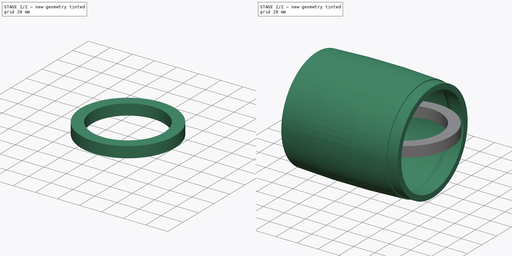
[diagram: build sequence overview — one tinted view per stage of 2, left to right]
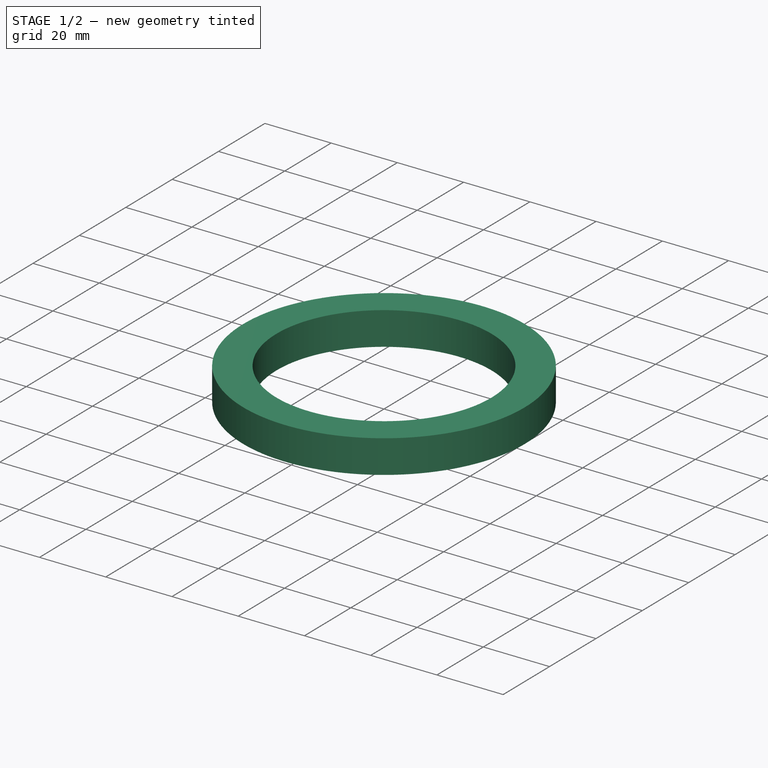
[diagram: stage 1 of 2 — iso view after this stage's code; geometry added in this stage tinted green]
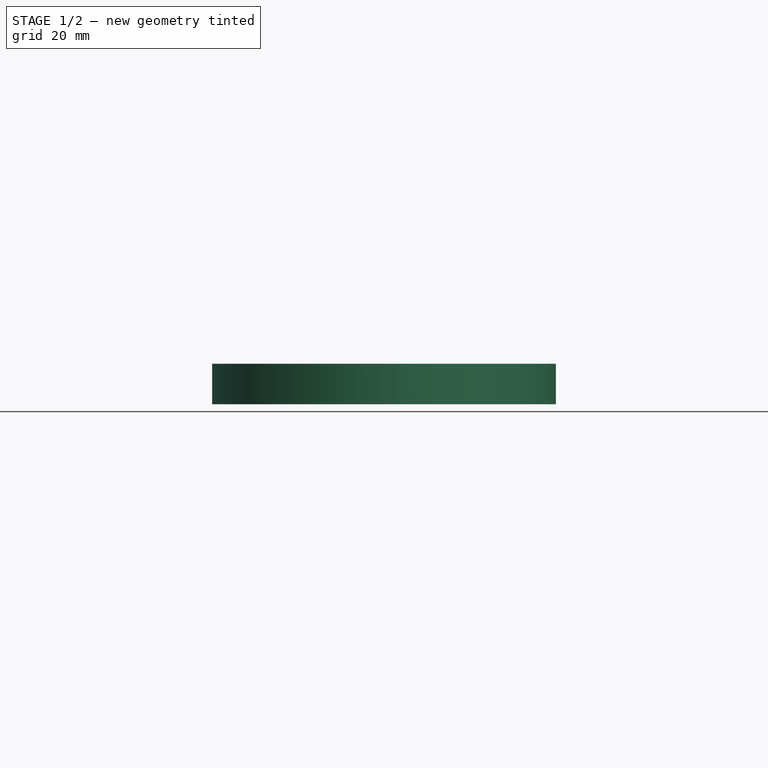
[diagram: stage 1 of 2 — front view after this stage's code; geometry added in this stage tinted green]
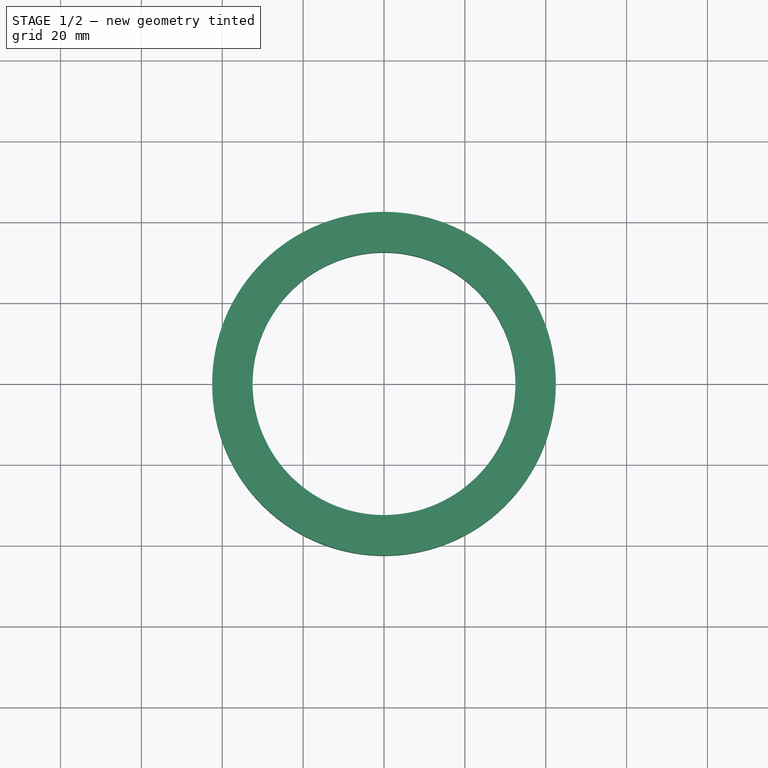
[diagram: stage 1 of 2 — top view after this stage's code; geometry added in this stage tinted green]
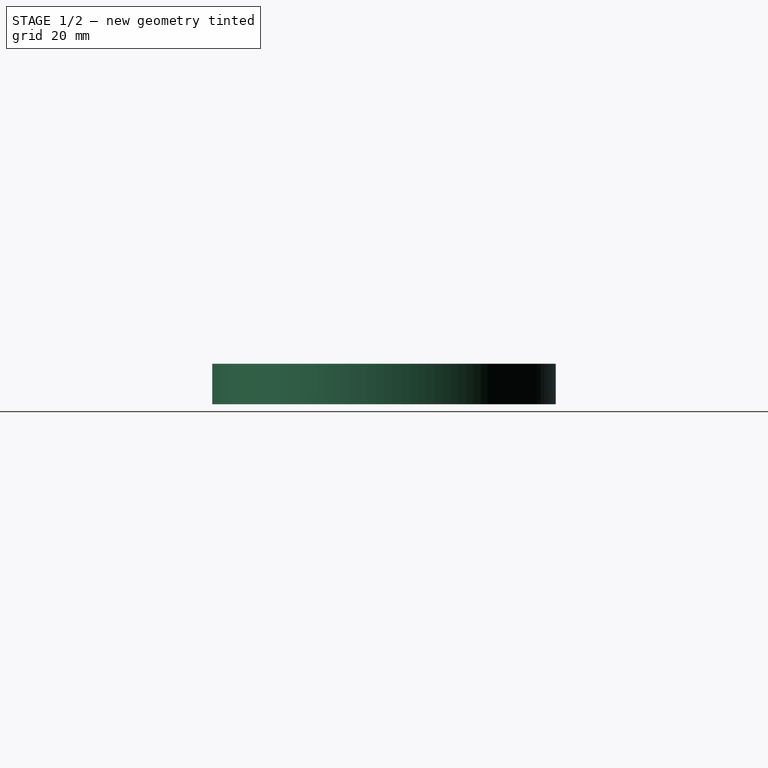
[diagram: stage 1 of 2 — right view after this stage's code; geometry added in this stage tinted green]
FCSTD DOCUMENT  (FreeCAD 0.22R37898 (Git))
Label: hub 6384
License: All rights reserved
LicenseURL: http://en.wikipedia.org/wiki/All_rights_reserved
objects: Part::Feature×3, Sketcher::SketchObject×2, PartDesign::Body×2, PartDesign::Revolution×1, App::Part×1, PartDesign::Pad×1
note: 11 computed .brp shape members not serialized (recipe doc carries the construction recipe); baked Part::Feature solids carry a one-line shape summary decoded from their .brp

FEATURE [PartDesign::Body] Body002  label="Pulley"
  AllowCompound = false
  Group = -> [Sketch007,Revolution004]
  Origin = -> Origin002
  Placement = pos=(27.5,0,0) rot=(0,0,1;0rad)
  Tip = -> Revolution004
FEATURE [Part::Feature] Part__Feature  label="Body"
  shape: bbox 68.19 x 68.19 x 80 mm, 50 faces (baked)
FEATURE [Part::Feature] Part__Feature001  label="Axis"
  shape: bbox 10.82 x 10.82 x 111 mm, 8 faces (baked)
FEATURE [App::Part] _384_DC_motor
  Group = -> [Part__Feature,Part__Feature001]
  Origin = -> Origin
  Placement = pos=(-35,0,-7.8e-15) rot=(0,1,0;4.71239rad)
FEATURE [Part::Feature] Part__Feature002  label="Coupler flange"
  Placement = pos=(-54.5,0,-1.21e-14) rot=(0,1,0;4.71239rad)
  shape: bbox 13 x 31 x 31 mm, 10 faces (baked)
FEATURE [Sketcher::SketchObject] Sketch
  AttachmentSupport = -> [XY_Plane003]
  FullyConstrained = true
  MapMode = 5
  sketch-geometry (2):
    g0: Circle CenterX=0 CenterY=0 CenterZ=0 NormalX=0 NormalY=0 NormalZ=1 AngleXU=0 Radius=42.5
    g1: Circle CenterX=0 CenterY=0 CenterZ=0 NormalX=0 NormalY=0 NormalZ=1 AngleXU=0 Radius=32.5
  constraints (4):
    c: Coincident(g0,g-1)
    c: Coincident(g1,g0)
    c: Diameter(g1) = 65
    c: Diameter(g0) = 85
FEATURE [PartDesign::Pad] Pad
  Direction = (0,0,1)
  Length = 10
  Length2 = 10
  Profile = -> Sketch
  ReferenceAxis = -> Sketch [N_Axis]
  Suppressed = false
  Type = 0
FEATURE [PartDesign::Body] Body  label="Bearing"
  AllowCompound = false
  Group = -> [Sketch,Pad]
  Origin = -> Origin003
  Placement = pos=(42.5,0,9.4e-15) rot=(0,1,0;1.5708rad)
  Tip = -> Pad
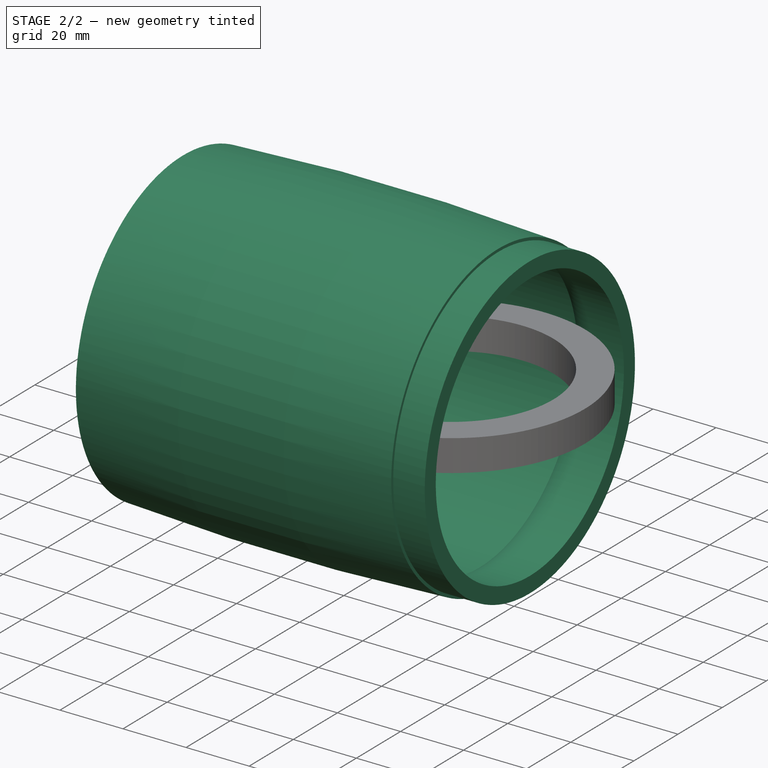
[diagram: stage 2 of 2 — iso view after this stage's code; geometry added in this stage tinted green]
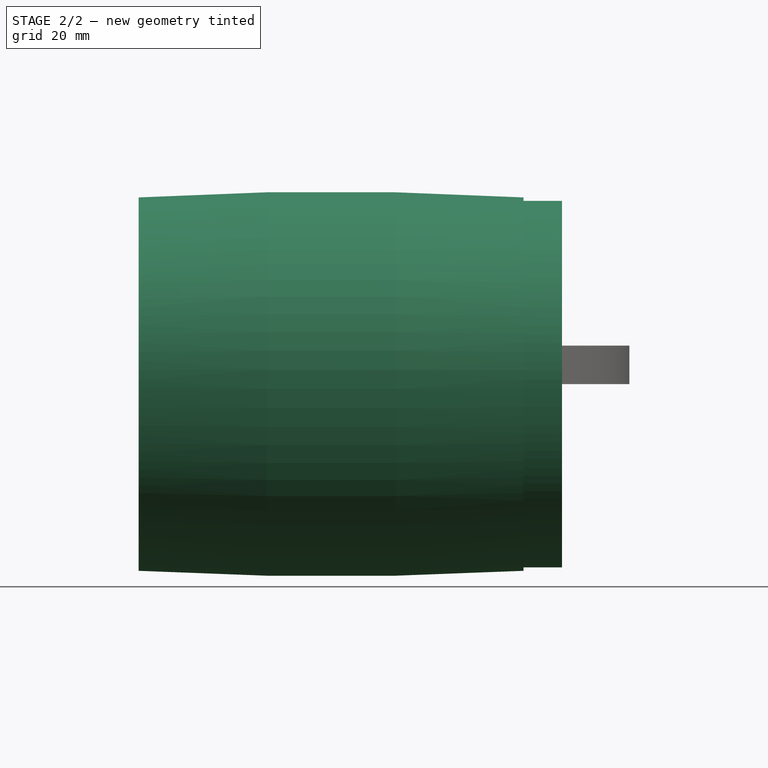
[diagram: stage 2 of 2 — front view after this stage's code; geometry added in this stage tinted green]
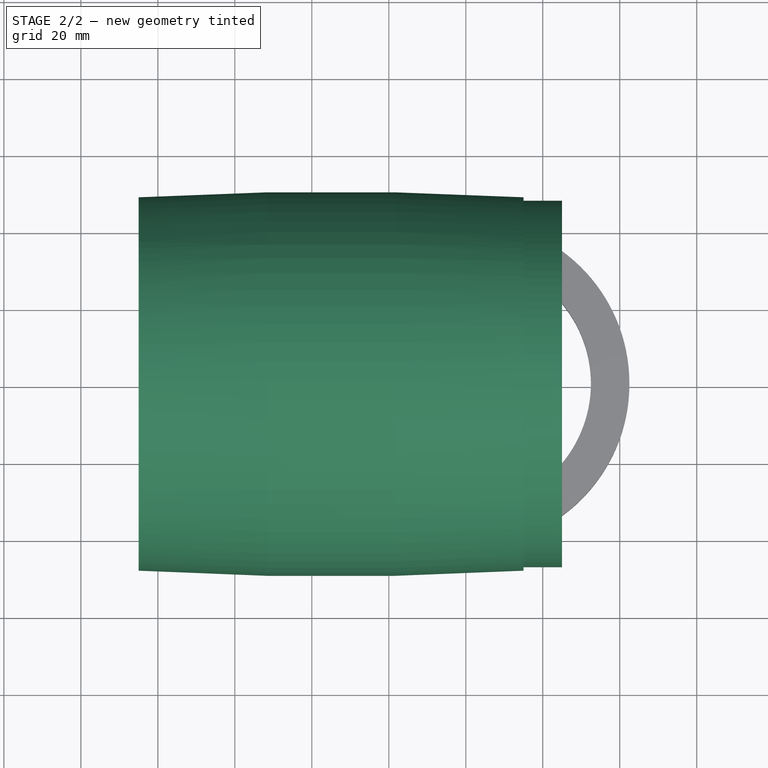
[diagram: stage 2 of 2 — top view after this stage's code; geometry added in this stage tinted green]
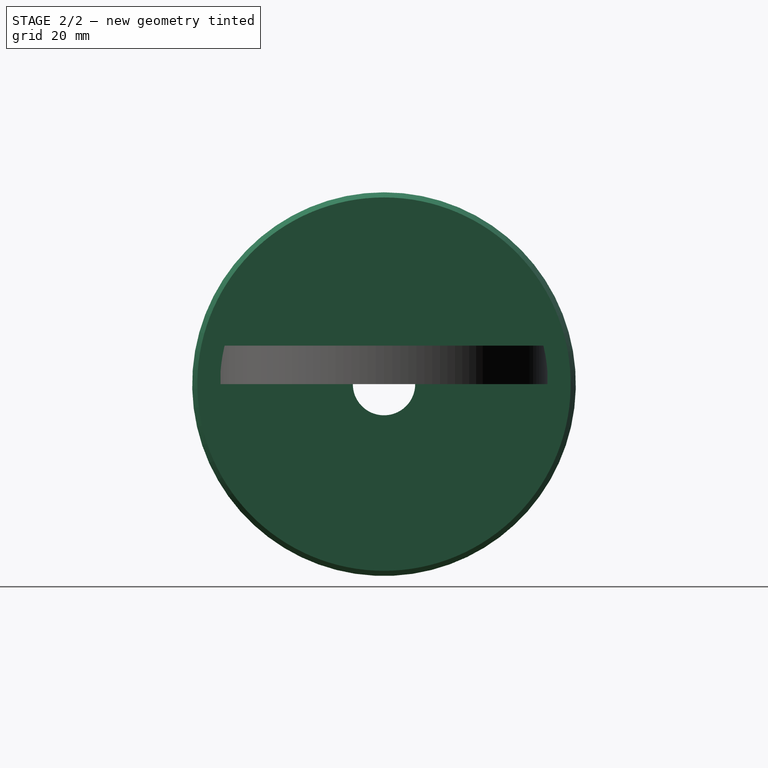
[diagram: stage 2 of 2 — right view after this stage's code; geometry added in this stage tinted green]
FEATURE [Sketcher::SketchObject] Sketch007
  AttachmentSupport = -> [XZ_Plane002]
  FullyConstrained = true
  MapMode = 5
  Placement = pos=(0,0,0) rot=(1,0,0;1.5708rad)
  sketch-geometry (13):
    g0: LineSegment StartX=15 StartY=47.6 StartZ=0 EndX=15 EndY=48.5 EndZ=0
    g1: ArcOfCircle CenterX=-35 CenterY=-784.083 CenterZ=0 NormalX=0 NormalY=0 NormalZ=1 AngleXU=0 Radius=834.083 StartAngle=1.51081 EndAngle=1.63078
    g2: LineSegment StartX=-35 StartY=0 StartZ=0 EndX=-35 EndY=50 EndZ=0
    g3: LineSegment StartX=-85 StartY=15.6 StartZ=0 EndX=-82 EndY=15.6 EndZ=0
    g4: LineSegment StartX=-82 StartY=15.6 StartZ=0 EndX=-82 EndY=8.1 EndZ=0
    g5: LineSegment StartX=-82 StartY=8.1 StartZ=0 EndX=-72 EndY=8.1 EndZ=0
    g6: LineSegment StartX=-72 StartY=8.1 StartZ=0 EndX=-72 EndY=44.5 EndZ=0
    g7: LineSegment StartX=-85 StartY=15.6 StartZ=0 EndX=-85 EndY=48.5 EndZ=0
    g8: LineSegment StartX=-72 StartY=44.5 StartZ=0 EndX=9 EndY=44.5 EndZ=0
    g9: LineSegment StartX=15 StartY=42.6 StartZ=0 EndX=25 EndY=42.6 EndZ=0
    g10: LineSegment StartX=25 StartY=42.6 StartZ=0 EndX=25 EndY=47.6 EndZ=0
    g11: LineSegment StartX=25 StartY=47.6 StartZ=0 EndX=15 EndY=47.6 EndZ=0
    g12: ArcOfCircle CenterX=15 CenterY=53.0237 CenterZ=0 NormalX=0 NormalY=0 NormalZ=1 AngleXU=0 Radius=10.4237 StartAngle=4.09904 EndAngle=4.71239
  constraints (41):
    c: Vertical(g0)
    c: Distance(g1,g0) = 100
    c: Coincident(g1,g0)
    c: PointOnObject(g2,g1)
    c: Perpendicular(g1,g2)
    c: DistanceY(g2,g2) = 50
    c: Horizontal(g3)
    c: Coincident(g4,g3)
    c: Vertical(g4)
    c: Coincident(g5,g4)
    c: Horizontal(g5)
    c: Coincident(g6,g5)
    c: Vertical(g6)
    c: PointOnObject(g2,g-1)
    c: DistanceY(g-1,g3) = 15.6
    c: DistanceY(g-1,g4) = 8.1
    c: DistanceY(g1,g2) = 1.5
    c: Vertical(g2)
    c: DistanceX(g-1,g0) = 15
    c: Coincident(g7,g1)
    c: Vertical(g7)
    c: Coincident(g8,g6)
    c: Horizontal(g8)
    c: Horizontal(g9)
    c: Coincident(g10,g9)
    c: Coincident(g11,g10)
    c: Horizontal(g11)
    c: Coincident(g11,g0)
    c: Vertical(g10)
    c: DistanceX(g8,g0) = 6
    c: DistanceY(g10,g10) = 5
    c: Horizontal(g0,g1)
    c: DistanceY(g8,g0) = 4
    c: DistanceX(g1,g6) = 13
    c: DistanceY(g-1,g9) = 42.6
    c: DistanceX(g3,g3) = 3
    c: Tangent(g9,g12) = -1.5708
    c: Coincident(g12,g8)
    c: Equal(g9,g11)
    c: DistanceX(g11,g11) = 10
    c: Coincident(g7,g3)
FEATURE [PartDesign::Revolution] Revolution004
  Angle = 360
  Angle2 = 60
  Axis = (1,0,0)
  Base = (0,0,0)
  Placement = pos=(0,0,0) rot=(1,0,0;1.5708rad)
  Profile = -> Sketch007
  ReferenceAxis = -> Sketch007 [H_Axis]
  Suppressed = false
  Type = 0
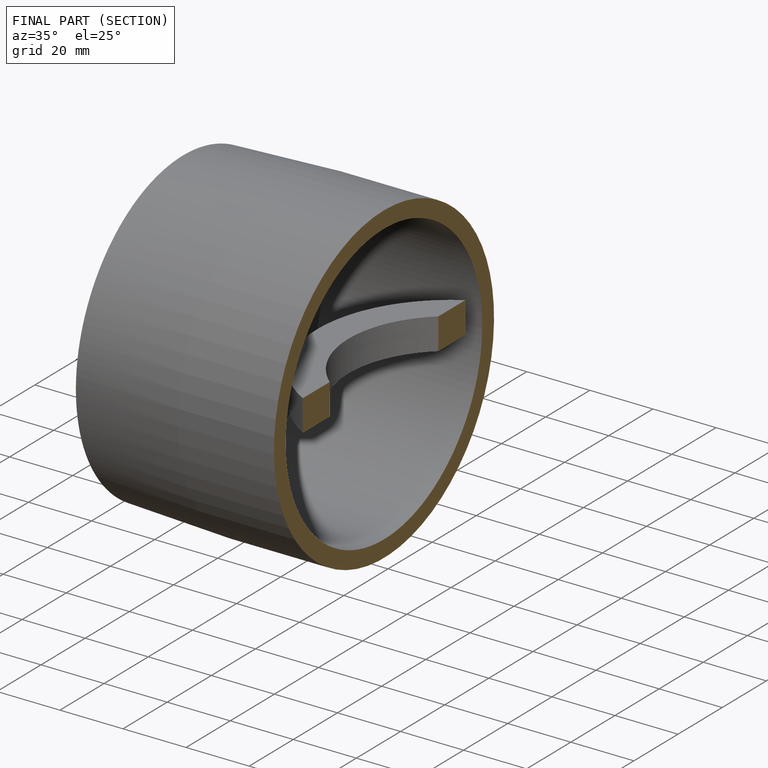
[diagram: finished part — half-section view (interior)]
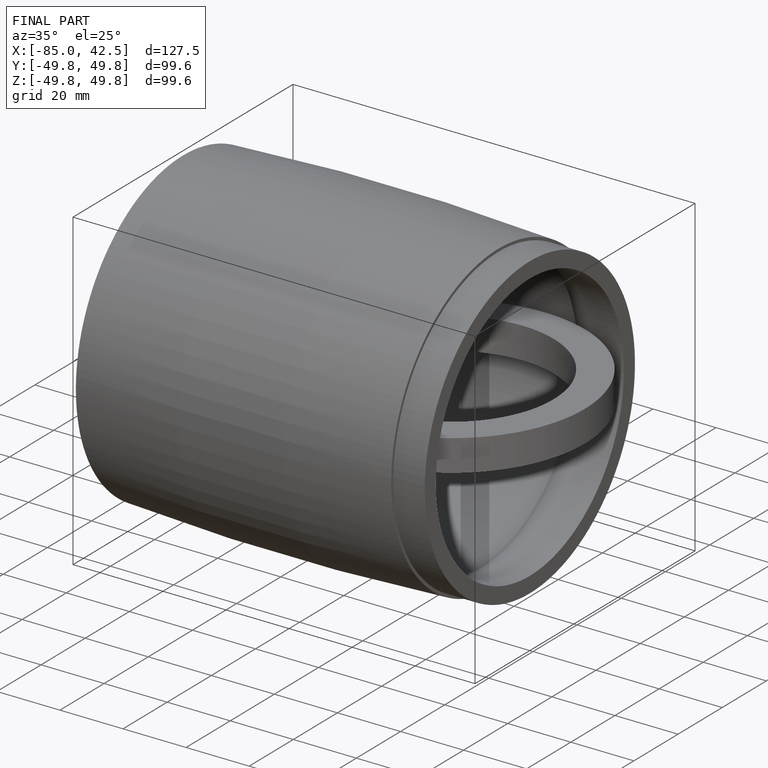
[diagram: finished part — iso view with bounding-box wireframe]
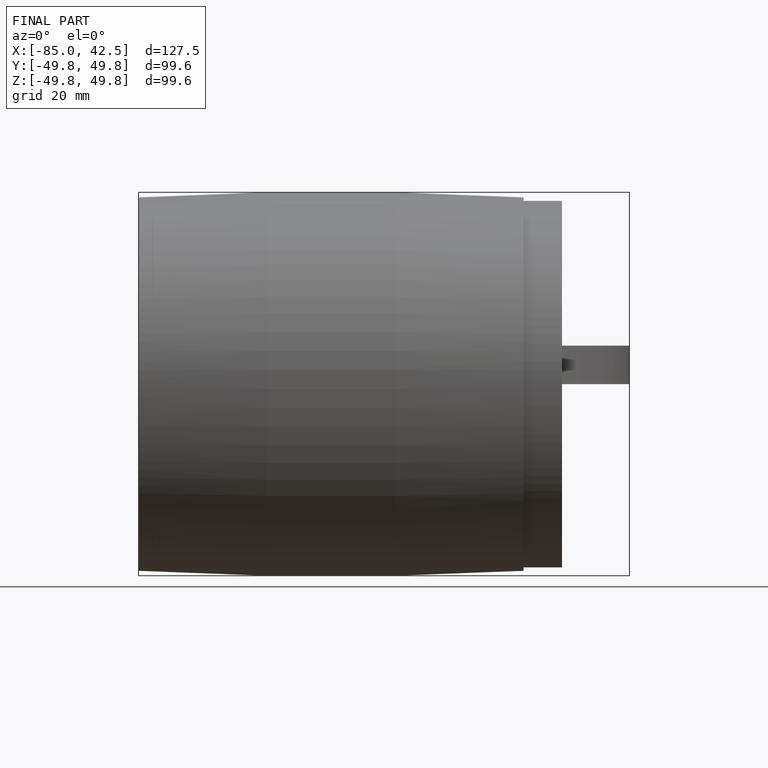
[diagram: finished part — front view with bounding-box wireframe]
